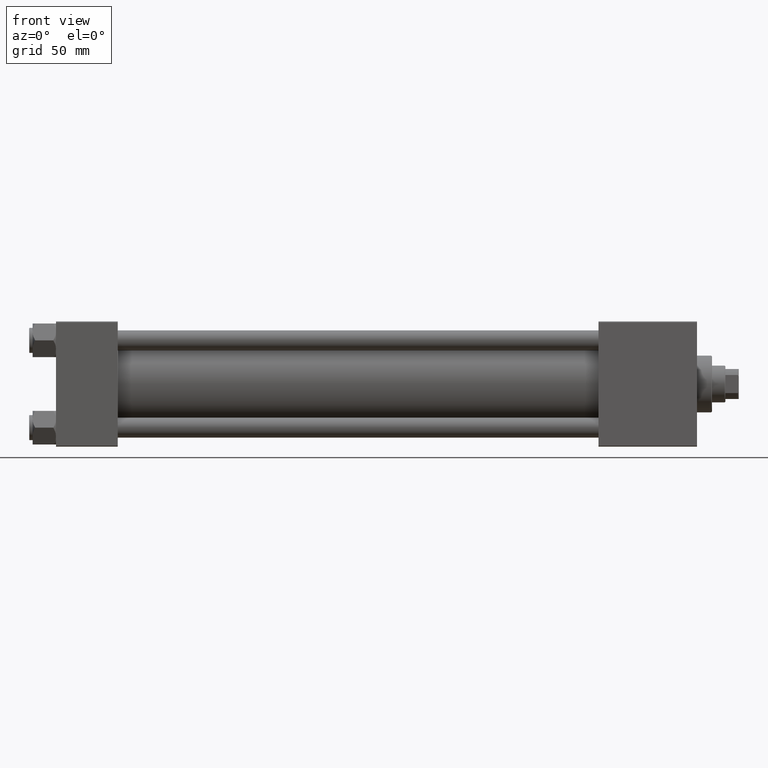
[diagram: clean part render]
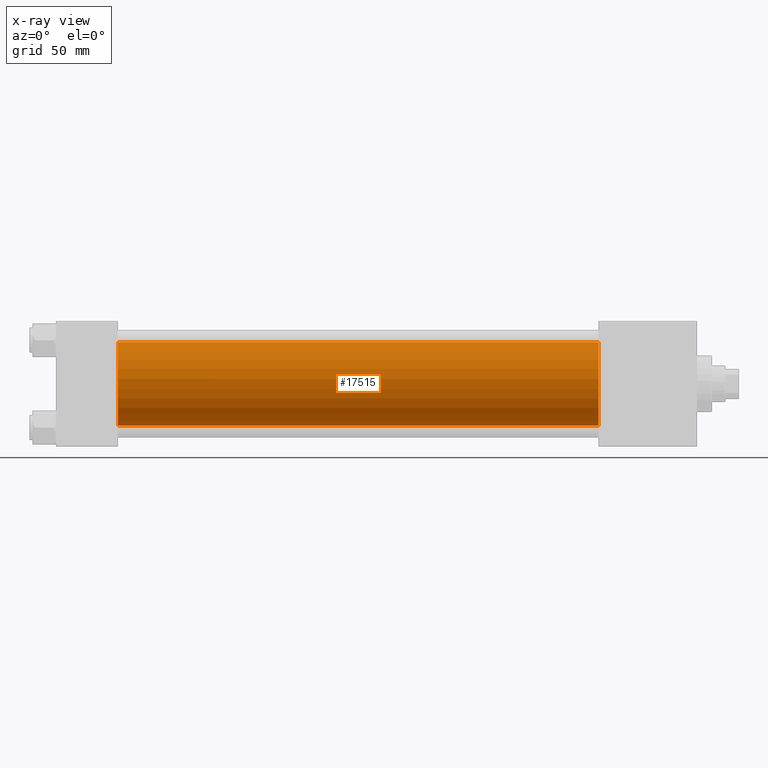
[diagram: x-ray — body ghosted, one internal face saturated and labeled with its STEP entity id]
A machine part, front view, then the same camera in x-ray: the body is ghosted and one INTERNAL B-rep face — a face not visible from any outside direction — is saturated and labeled: STEP entity #17515.
In plain terms, the highlighted cylindrical surface (partial cylindrical patch) has radius 25 mm, axis along (-1, -0, -0).
Its self-contained STEP definition (entity closure, byte-faithful):
#1658 = DIRECTION ( 'NONE',  ( -1.000000000000000000, -0.000000000000000000, -0.000000000000000000 ) ) ;
#2926 = CARTESIAN_POINT ( 'NONE',  ( 324.9999999999999432, -2.602085213965210642E-15, 0.000000000000000000 ) ) ;
#5324 = AXIS2_PLACEMENT_3D ( 'NONE', #28813, #25014, #17638 ) ;
#5489 = LINE ( 'NONE', #13345, #43081 ) ;
#6161 = CARTESIAN_POINT ( 'NONE',  ( 324.9999999999999432, -2.602085213965210642E-15, 25.00000000000000000 ) ) ;
#6462 = AXIS2_PLACEMENT_3D ( 'NONE', #18853, #34326, #18348 ) ;
#6939 = EDGE_CURVE ( 'NONE', #14960, #26014, #45812, .T. ) ;
#7006 = EDGE_LOOP ( 'NONE', ( #11006, #24601, #35272, #27154 ) ) ;
#7380 = VERTEX_POINT ( 'NONE', #6161 ) ;
#7441 = CYLINDRICAL_SURFACE ( 'NONE', #6462, 25.00000000000000000 ) ;
#11006 = ORIENTED_EDGE ( 'NONE', *, *, #20080, .T. ) ;
#13136 = DIRECTION ( 'NONE',  ( -1.000000000000000000, -0.000000000000000000, -0.000000000000000000 ) ) ;
#13345 = CARTESIAN_POINT ( 'NONE',  ( 324.9999999999999432, 4.595317839031724996E-16, -25.00000000000000000 ) ) ;
#14960 = VERTEX_POINT ( 'NONE', #15547 ) ;
#15547 = CARTESIAN_POINT ( 'NONE',  ( 37.00000000000000000, -2.602085213965210642E-15, 25.00000000000000000 ) ) ;
#17114 = VERTEX_POINT ( 'NONE', #42623 ) ;
#17515 = ADVANCED_FACE ( 'NONE', ( #22914 ), #7441, .F. ) ;
#17638 = DIRECTION ( 'NONE',  ( 0.000000000000000000, 0.000000000000000000, -1.000000000000000000 ) ) ;
#18348 = DIRECTION ( 'NONE',  ( 0.000000000000000000, 0.000000000000000000, 1.000000000000000000 ) ) ;
#18853 = CARTESIAN_POINT ( 'NONE',  ( 324.9999999999999432, -2.602085213965210642E-15, 0.000000000000000000 ) ) ;
#20024 = EDGE_CURVE ( 'NONE', #7380, #14960, #32421, .T. ) ;
#20080 = EDGE_CURVE ( 'NONE', #7380, #17114, #45068, .T. ) ;
#22914 = FACE_OUTER_BOUND ( 'NONE', #7006, .T. ) ;
#24601 = ORIENTED_EDGE ( 'NONE', *, *, #35979, .T. ) ;
#25014 = DIRECTION ( 'NONE',  ( 1.000000000000000000, 0.000000000000000000, 0.000000000000000000 ) ) ;
#26014 = VERTEX_POINT ( 'NONE', #48210 ) ;
#27154 = ORIENTED_EDGE ( 'NONE', *, *, #20024, .F. ) ;
#28813 = CARTESIAN_POINT ( 'NONE',  ( 37.00000000000000000, -2.602085213965210642E-15, 0.000000000000000000 ) ) ;
#29105 = DIRECTION ( 'NONE',  ( 0.000000000000000000, 0.000000000000000000, -1.000000000000000000 ) ) ;
#32421 = LINE ( 'NONE', #47883, #38605 ) ;
#34326 = DIRECTION ( 'NONE',  ( -1.000000000000000000, -0.000000000000000000, -0.000000000000000000 ) ) ;
#35272 = ORIENTED_EDGE ( 'NONE', *, *, #6939, .F. ) ;
#35979 = EDGE_CURVE ( 'NONE', #17114, #26014, #5489, .T. ) ;
#38605 = VECTOR ( 'NONE', #13136, 1000.000000000000000 ) ;
#40770 = DIRECTION ( 'NONE',  ( 1.000000000000000000, 0.000000000000000000, 0.000000000000000000 ) ) ;
#41838 = AXIS2_PLACEMENT_3D ( 'NONE', #2926, #40770, #29105 ) ;
#42623 = CARTESIAN_POINT ( 'NONE',  ( 324.9999999999999432, 4.595317839031724996E-16, -25.00000000000000000 ) ) ;
#43081 = VECTOR ( 'NONE', #1658, 1000.000000000000000 ) ;
#45068 = CIRCLE ( 'NONE', #41838, 25.00000000000000000 ) ;
#45812 = CIRCLE ( 'NONE', #5324, 25.00000000000000000 ) ;
#47883 = CARTESIAN_POINT ( 'NONE',  ( 324.9999999999999432, -2.602085213965210642E-15, 25.00000000000000000 ) ) ;
#48210 = CARTESIAN_POINT ( 'NONE',  ( 37.00000000000000000, 4.595317839031724996E-16, -25.00000000000000000 ) ) ;